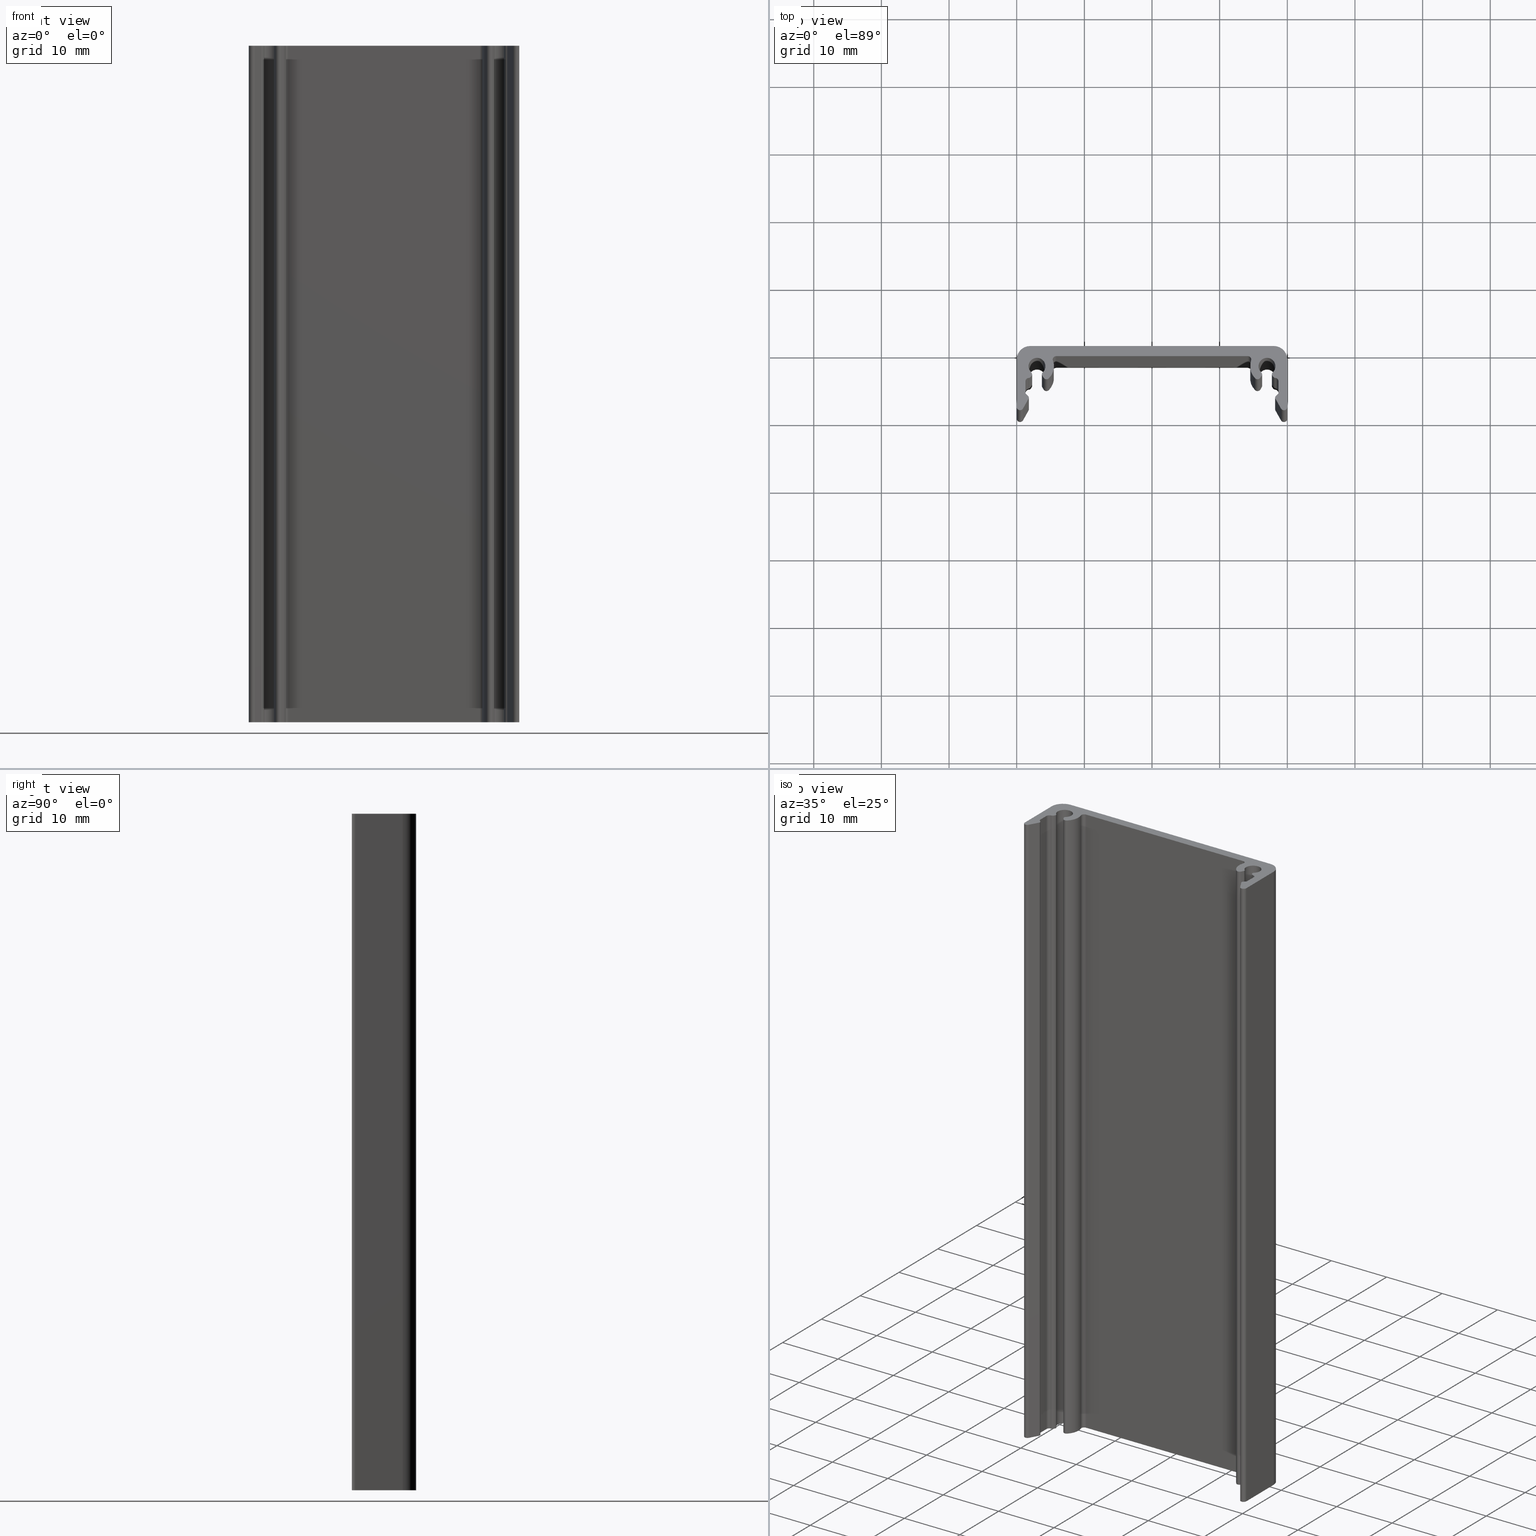
[diagram: canonical four-view strip — front | top / right | iso, engineering-drawing reading convention]
A machine part, canonical four-view strip (front | top / right | iso — engineering-drawing reading convention). The complete STEP part file that produces these views, byte-faithful:
ISO-10303-21;
HEADER;
/* Generated by software containing ST-Developer
 * from STEP Tools, Inc. (www.steptools.com) 
 */

FILE_DESCRIPTION(
/* description */ (''),
/* implementation_level */ '2;1');

FILE_NAME(
/* name */ 
'Q:\\Catalogo\\1_Profili Dierre\\Per Download Web\\Complementari\\BPRC
A0000006.stp',
/* time_stamp */ '2017-07-14T11:41:06+02:00',
/* author */ ('fzagni'),
/* organization */ (''),
/* preprocessor_version */ 'ST-DEVELOPER v16.1',
/* originating_system */ 'Autodesk Inventor 2016',
/* authorisation */ '');

FILE_SCHEMA (('AUTOMOTIVE_DESIGN { 1 0 10303 214 3 1 1 }'));
ENDSEC;

DATA;
#10=MECHANICAL_DESIGN_GEOMETRIC_PRESENTATION_REPRESENTATION('',(#13),#1271);
#11=SHAPE_REPRESENTATION_RELATIONSHIP('SRR','None',#1280,#12);
#12=ADVANCED_BREP_SHAPE_REPRESENTATION('',(#14),#1270);
#13=STYLED_ITEM('',(#1289),#14);
#14=MANIFOLD_SOLID_BREP('Solido1',#735);
#15=PLANE('',#746);
#16=PLANE('',#756);
#17=PLANE('',#766);
#18=PLANE('',#773);
#19=PLANE('',#774);
#20=PLANE('',#778);
#21=PLANE('',#782);
#22=PLANE('',#783);
#23=PLANE('',#793);
#24=PLANE('',#800);
#25=PLANE('',#801);
#26=PLANE('',#805);
#27=PLANE('',#809);
#28=PLANE('',#816);
#29=PLANE('',#817);
#30=PLANE('',#818);
#31=FACE_OUTER_BOUND('',#69,.T.);
#32=FACE_OUTER_BOUND('',#70,.T.);
#33=FACE_OUTER_BOUND('',#71,.T.);
#34=FACE_OUTER_BOUND('',#72,.T.);
#35=FACE_OUTER_BOUND('',#73,.T.);
#36=FACE_OUTER_BOUND('',#74,.T.);
#37=FACE_OUTER_BOUND('',#75,.T.);
#38=FACE_OUTER_BOUND('',#76,.T.);
#39=FACE_OUTER_BOUND('',#77,.T.);
#40=FACE_OUTER_BOUND('',#78,.T.);
#41=FACE_OUTER_BOUND('',#79,.T.);
#42=FACE_OUTER_BOUND('',#80,.T.);
#43=FACE_OUTER_BOUND('',#81,.T.);
#44=FACE_OUTER_BOUND('',#82,.T.);
#45=FACE_OUTER_BOUND('',#83,.T.);
#46=FACE_OUTER_BOUND('',#84,.T.);
#47=FACE_OUTER_BOUND('',#85,.T.);
#48=FACE_OUTER_BOUND('',#86,.T.);
#49=FACE_OUTER_BOUND('',#87,.T.);
#50=FACE_OUTER_BOUND('',#88,.T.);
#51=FACE_OUTER_BOUND('',#89,.T.);
#52=FACE_OUTER_BOUND('',#90,.T.);
#53=FACE_OUTER_BOUND('',#91,.T.);
#54=FACE_OUTER_BOUND('',#92,.T.);
#55=FACE_OUTER_BOUND('',#93,.T.);
#56=FACE_OUTER_BOUND('',#94,.T.);
#57=FACE_OUTER_BOUND('',#95,.T.);
#58=FACE_OUTER_BOUND('',#96,.T.);
#59=FACE_OUTER_BOUND('',#97,.T.);
#60=FACE_OUTER_BOUND('',#98,.T.);
#61=FACE_OUTER_BOUND('',#99,.T.);
#62=FACE_OUTER_BOUND('',#100,.T.);
#63=FACE_OUTER_BOUND('',#101,.T.);
#64=FACE_OUTER_BOUND('',#102,.T.);
#65=FACE_OUTER_BOUND('',#103,.T.);
#66=FACE_OUTER_BOUND('',#104,.T.);
#67=FACE_OUTER_BOUND('',#105,.T.);
#68=FACE_OUTER_BOUND('',#106,.T.);
#69=EDGE_LOOP('',(#459,#460,#461,#462));
#70=EDGE_LOOP('',(#463,#464,#465,#466));
#71=EDGE_LOOP('',(#467,#468,#469,#470));
#72=EDGE_LOOP('',(#471,#472,#473,#474));
#73=EDGE_LOOP('',(#475,#476,#477,#478));
#74=EDGE_LOOP('',(#479,#480,#481,#482));
#75=EDGE_LOOP('',(#483,#484,#485,#486));
#76=EDGE_LOOP('',(#487,#488,#489,#490));
#77=EDGE_LOOP('',(#491,#492,#493,#494));
#78=EDGE_LOOP('',(#495,#496,#497,#498));
#79=EDGE_LOOP('',(#499,#500,#501,#502));
#80=EDGE_LOOP('',(#503,#504,#505,#506));
#81=EDGE_LOOP('',(#507,#508,#509,#510));
#82=EDGE_LOOP('',(#511,#512,#513,#514));
#83=EDGE_LOOP('',(#515,#516,#517,#518));
#84=EDGE_LOOP('',(#519,#520,#521,#522));
#85=EDGE_LOOP('',(#523,#524,#525,#526));
#86=EDGE_LOOP('',(#527,#528,#529,#530));
#87=EDGE_LOOP('',(#531,#532,#533,#534));
#88=EDGE_LOOP('',(#535,#536,#537,#538));
#89=EDGE_LOOP('',(#539,#540,#541,#542));
#90=EDGE_LOOP('',(#543,#544,#545,#546));
#91=EDGE_LOOP('',(#547,#548,#549,#550));
#92=EDGE_LOOP('',(#551,#552,#553,#554));
#93=EDGE_LOOP('',(#555,#556,#557,#558));
#94=EDGE_LOOP('',(#559,#560,#561,#562));
#95=EDGE_LOOP('',(#563,#564,#565,#566));
#96=EDGE_LOOP('',(#567,#568,#569,#570));
#97=EDGE_LOOP('',(#571,#572,#573,#574));
#98=EDGE_LOOP('',(#575,#576,#577,#578));
#99=EDGE_LOOP('',(#579,#580,#581,#582));
#100=EDGE_LOOP('',(#583,#584,#585,#586));
#101=EDGE_LOOP('',(#587,#588,#589,#590));
#102=EDGE_LOOP('',(#591,#592,#593,#594));
#103=EDGE_LOOP('',(#595,#596,#597,#598));
#104=EDGE_LOOP('',(#599,#600,#601,#602,#603,#604,#605,#606,#607,#608,#609,
#610,#611,#612,#613,#614,#615,#616,#617,#618,#619,#620,#621,#622,#623,#624,
#625,#626,#627,#628,#629,#630,#631,#632,#633,#634));
#105=EDGE_LOOP('',(#635,#636,#637,#638));
#106=EDGE_LOOP('',(#639,#640,#641,#642,#643,#644,#645,#646,#647,#648,#649,
#650,#651,#652,#653,#654,#655,#656,#657,#658,#659,#660,#661,#662,#663,#664,
#665,#666,#667,#668,#669,#670,#671,#672,#673,#674));
#107=LINE('',#1055,#171);
#108=LINE('',#1058,#172);
#109=LINE('',#1064,#173);
#110=LINE('',#1070,#174);
#111=LINE('',#1073,#175);
#112=LINE('',#1075,#176);
#113=LINE('',#1076,#177);
#114=LINE('',#1082,#178);
#115=LINE('',#1088,#179);
#116=LINE('',#1094,#180);
#117=LINE('',#1097,#181);
#118=LINE('',#1099,#182);
#119=LINE('',#1100,#183);
#120=LINE('',#1106,#184);
#121=LINE('',#1112,#185);
#122=LINE('',#1118,#186);
#123=LINE('',#1121,#187);
#124=LINE('',#1123,#188);
#125=LINE('',#1124,#189);
#126=LINE('',#1130,#190);
#127=LINE('',#1136,#191);
#128=LINE('',#1139,#192);
#129=LINE('',#1141,#193);
#130=LINE('',#1142,#194);
#131=LINE('',#1145,#195);
#132=LINE('',#1147,#196);
#133=LINE('',#1148,#197);
#134=LINE('',#1154,#198);
#135=LINE('',#1157,#199);
#136=LINE('',#1159,#200);
#137=LINE('',#1160,#201);
#138=LINE('',#1166,#202);
#139=LINE('',#1169,#203);
#140=LINE('',#1171,#204);
#141=LINE('',#1172,#205);
#142=LINE('',#1175,#206);
#143=LINE('',#1177,#207);
#144=LINE('',#1178,#208);
#145=LINE('',#1183,#209);
#146=LINE('',#1189,#210);
#147=LINE('',#1195,#211);
#148=LINE('',#1199,#212);
#149=LINE('',#1201,#213);
#150=LINE('',#1202,#214);
#151=LINE('',#1207,#215);
#152=LINE('',#1213,#216);
#153=LINE('',#1217,#217);
#154=LINE('',#1219,#218);
#155=LINE('',#1220,#219);
#156=LINE('',#1223,#220);
#157=LINE('',#1225,#221);
#158=LINE('',#1226,#222);
#159=LINE('',#1231,#223);
#160=LINE('',#1235,#224);
#161=LINE('',#1237,#225);
#162=LINE('',#1238,#226);
#163=LINE('',#1243,#227);
#164=LINE('',#1247,#228);
#165=LINE('',#1249,#229);
#166=LINE('',#1250,#230);
#167=LINE('',#1255,#231);
#168=LINE('',#1262,#232);
#169=LINE('',#1264,#233);
#170=LINE('',#1266,#234);
#171=VECTOR('',#825,100.);
#172=VECTOR('',#828,100.);
#173=VECTOR('',#835,100.);
#174=VECTOR('',#842,100.);
#175=VECTOR('',#845,28.3431457504998);
#176=VECTOR('',#846,28.3431457504998);
#177=VECTOR('',#847,100.);
#178=VECTOR('',#854,100.);
#179=VECTOR('',#861,100.);
#180=VECTOR('',#868,100.);
#181=VECTOR('',#871,0.415801040542399);
#182=VECTOR('',#872,0.415801040542399);
#183=VECTOR('',#873,100.);
#184=VECTOR('',#880,100.);
#185=VECTOR('',#887,100.);
#186=VECTOR('',#894,100.);
#187=VECTOR('',#897,0.19038011818812);
#188=VECTOR('',#898,0.19038011818812);
#189=VECTOR('',#899,100.);
#190=VECTOR('',#906,100.);
#191=VECTOR('',#913,100.);
#192=VECTOR('',#916,1.77783328947104);
#193=VECTOR('',#917,1.77783328947104);
#194=VECTOR('',#918,100.);
#195=VECTOR('',#921,0.582842712490683);
#196=VECTOR('',#922,0.582842712490683);
#197=VECTOR('',#923,100.);
#198=VECTOR('',#930,100.);
#199=VECTOR('',#933,1.68430994774901);
#200=VECTOR('',#934,1.68430994774901);
#201=VECTOR('',#935,100.);
#202=VECTOR('',#942,100.);
#203=VECTOR('',#945,6.99999999999857);
#204=VECTOR('',#946,6.99999999999857);
#205=VECTOR('',#947,100.);
#206=VECTOR('',#950,0.415801040537529);
#207=VECTOR('',#951,100.);
#208=VECTOR('',#952,0.415801040537529);
#209=VECTOR('',#957,100.);
#210=VECTOR('',#964,100.);
#211=VECTOR('',#971,100.);
#212=VECTOR('',#976,0.190380118148697);
#213=VECTOR('',#977,100.);
#214=VECTOR('',#978,0.190380118148697);
#215=VECTOR('',#983,100.);
#216=VECTOR('',#990,100.);
#217=VECTOR('',#995,1.77783328945031);
#218=VECTOR('',#996,100.);
#219=VECTOR('',#997,1.77783328945031);
#220=VECTOR('',#1000,0.582842712467854);
#221=VECTOR('',#1001,100.);
#222=VECTOR('',#1002,0.582842712467854);
#223=VECTOR('',#1007,100.);
#224=VECTOR('',#1012,1.68430994772338);
#225=VECTOR('',#1013,100.);
#226=VECTOR('',#1014,1.68430994772338);
#227=VECTOR('',#1019,100.);
#228=VECTOR('',#1024,6.99999999998679);
#229=VECTOR('',#1025,100.);
#230=VECTOR('',#1026,6.99999999998679);
#231=VECTOR('',#1031,100.);
#232=VECTOR('',#1040,100.);
#233=VECTOR('',#1043,36.);
#234=VECTOR('',#1046,36.);
#235=CIRCLE('',#738,0.5);
#236=CIRCLE('',#739,0.5);
#237=CIRCLE('',#741,2.50000000000608);
#238=CIRCLE('',#742,2.50000000000608);
#239=CIRCLE('',#744,0.5);
#240=CIRCLE('',#745,0.5);
#241=CIRCLE('',#748,0.5);
#242=CIRCLE('',#749,0.5);
#243=CIRCLE('',#751,2.50000000000608);
#244=CIRCLE('',#752,2.50000000000608);
#245=CIRCLE('',#754,0.5);
#246=CIRCLE('',#755,0.5);
#247=CIRCLE('',#758,0.299999999999853);
#248=CIRCLE('',#759,0.299999999999853);
#249=CIRCLE('',#761,1.24999999999524);
#250=CIRCLE('',#762,1.24999999999524);
#251=CIRCLE('',#764,0.299999999999853);
#252=CIRCLE('',#765,0.299999999999853);
#253=CIRCLE('',#768,0.499999999999971);
#254=CIRCLE('',#769,0.499999999999971);
#255=CIRCLE('',#771,0.5);
#256=CIRCLE('',#772,0.5);
#257=CIRCLE('',#776,0.299999999999853);
#258=CIRCLE('',#777,0.299999999999853);
#259=CIRCLE('',#780,0.5);
#260=CIRCLE('',#781,0.5);
#261=CIRCLE('',#785,0.299999999999853);
#262=CIRCLE('',#786,0.299999999999853);
#263=CIRCLE('',#788,1.24999999999524);
#264=CIRCLE('',#789,1.24999999999524);
#265=CIRCLE('',#791,0.299999999999853);
#266=CIRCLE('',#792,0.299999999999853);
#267=CIRCLE('',#795,0.5);
#268=CIRCLE('',#796,0.5);
#269=CIRCLE('',#798,0.5);
#270=CIRCLE('',#799,0.5);
#271=CIRCLE('',#803,0.299999999999853);
#272=CIRCLE('',#804,0.299999999999853);
#273=CIRCLE('',#807,0.5);
#274=CIRCLE('',#808,0.5);
#275=CIRCLE('',#811,2.);
#276=CIRCLE('',#812,2.);
#277=CIRCLE('',#814,2.);
#278=CIRCLE('',#815,2.);
#279=VERTEX_POINT('',#1051);
#280=VERTEX_POINT('',#1052);
#281=VERTEX_POINT('',#1054);
#282=VERTEX_POINT('',#1056);
#283=VERTEX_POINT('',#1060);
#284=VERTEX_POINT('',#1062);
#285=VERTEX_POINT('',#1066);
#286=VERTEX_POINT('',#1068);
#287=VERTEX_POINT('',#1072);
#288=VERTEX_POINT('',#1074);
#289=VERTEX_POINT('',#1078);
#290=VERTEX_POINT('',#1080);
#291=VERTEX_POINT('',#1084);
#292=VERTEX_POINT('',#1086);
#293=VERTEX_POINT('',#1090);
#294=VERTEX_POINT('',#1092);
#295=VERTEX_POINT('',#1096);
#296=VERTEX_POINT('',#1098);
#297=VERTEX_POINT('',#1102);
#298=VERTEX_POINT('',#1104);
#299=VERTEX_POINT('',#1108);
#300=VERTEX_POINT('',#1110);
#301=VERTEX_POINT('',#1114);
#302=VERTEX_POINT('',#1116);
#303=VERTEX_POINT('',#1120);
#304=VERTEX_POINT('',#1122);
#305=VERTEX_POINT('',#1126);
#306=VERTEX_POINT('',#1128);
#307=VERTEX_POINT('',#1132);
#308=VERTEX_POINT('',#1134);
#309=VERTEX_POINT('',#1138);
#310=VERTEX_POINT('',#1140);
#311=VERTEX_POINT('',#1144);
#312=VERTEX_POINT('',#1146);
#313=VERTEX_POINT('',#1150);
#314=VERTEX_POINT('',#1152);
#315=VERTEX_POINT('',#1156);
#316=VERTEX_POINT('',#1158);
#317=VERTEX_POINT('',#1162);
#318=VERTEX_POINT('',#1164);
#319=VERTEX_POINT('',#1168);
#320=VERTEX_POINT('',#1170);
#321=VERTEX_POINT('',#1174);
#322=VERTEX_POINT('',#1176);
#323=VERTEX_POINT('',#1180);
#324=VERTEX_POINT('',#1182);
#325=VERTEX_POINT('',#1186);
#326=VERTEX_POINT('',#1188);
#327=VERTEX_POINT('',#1192);
#328=VERTEX_POINT('',#1194);
#329=VERTEX_POINT('',#1198);
#330=VERTEX_POINT('',#1200);
#331=VERTEX_POINT('',#1204);
#332=VERTEX_POINT('',#1206);
#333=VERTEX_POINT('',#1210);
#334=VERTEX_POINT('',#1212);
#335=VERTEX_POINT('',#1216);
#336=VERTEX_POINT('',#1218);
#337=VERTEX_POINT('',#1222);
#338=VERTEX_POINT('',#1224);
#339=VERTEX_POINT('',#1228);
#340=VERTEX_POINT('',#1230);
#341=VERTEX_POINT('',#1234);
#342=VERTEX_POINT('',#1236);
#343=VERTEX_POINT('',#1240);
#344=VERTEX_POINT('',#1242);
#345=VERTEX_POINT('',#1246);
#346=VERTEX_POINT('',#1248);
#347=VERTEX_POINT('',#1252);
#348=VERTEX_POINT('',#1254);
#349=VERTEX_POINT('',#1258);
#350=VERTEX_POINT('',#1260);
#351=EDGE_CURVE('',#279,#280,#235,.T.);
#352=EDGE_CURVE('',#279,#281,#107,.T.);
#353=EDGE_CURVE('',#282,#281,#236,.T.);
#354=EDGE_CURVE('',#280,#282,#108,.T.);
#355=EDGE_CURVE('',#280,#283,#237,.T.);
#356=EDGE_CURVE('',#284,#282,#238,.T.);
#357=EDGE_CURVE('',#283,#284,#109,.T.);
#358=EDGE_CURVE('',#283,#285,#239,.T.);
#359=EDGE_CURVE('',#286,#284,#240,.T.);
#360=EDGE_CURVE('',#285,#286,#110,.T.);
#361=EDGE_CURVE('',#285,#287,#111,.T.);
#362=EDGE_CURVE('',#288,#286,#112,.T.);
#363=EDGE_CURVE('',#287,#288,#113,.T.);
#364=EDGE_CURVE('',#287,#289,#241,.T.);
#365=EDGE_CURVE('',#290,#288,#242,.T.);
#366=EDGE_CURVE('',#289,#290,#114,.T.);
#367=EDGE_CURVE('',#289,#291,#243,.T.);
#368=EDGE_CURVE('',#292,#290,#244,.T.);
#369=EDGE_CURVE('',#291,#292,#115,.T.);
#370=EDGE_CURVE('',#291,#293,#245,.T.);
#371=EDGE_CURVE('',#294,#292,#246,.T.);
#372=EDGE_CURVE('',#293,#294,#116,.T.);
#373=EDGE_CURVE('',#293,#295,#117,.T.);
#374=EDGE_CURVE('',#296,#294,#118,.T.);
#375=EDGE_CURVE('',#295,#296,#119,.T.);
#376=EDGE_CURVE('',#295,#297,#247,.T.);
#377=EDGE_CURVE('',#298,#296,#248,.T.);
#378=EDGE_CURVE('',#297,#298,#120,.T.);
#379=EDGE_CURVE('',#297,#299,#249,.T.);
#380=EDGE_CURVE('',#300,#298,#250,.T.);
#381=EDGE_CURVE('',#299,#300,#121,.T.);
#382=EDGE_CURVE('',#299,#301,#251,.T.);
#383=EDGE_CURVE('',#302,#300,#252,.T.);
#384=EDGE_CURVE('',#301,#302,#122,.T.);
#385=EDGE_CURVE('',#301,#303,#123,.T.);
#386=EDGE_CURVE('',#304,#302,#124,.T.);
#387=EDGE_CURVE('',#303,#304,#125,.T.);
#388=EDGE_CURVE('',#303,#305,#253,.T.);
#389=EDGE_CURVE('',#306,#304,#254,.T.);
#390=EDGE_CURVE('',#305,#306,#126,.T.);
#391=EDGE_CURVE('',#305,#307,#255,.T.);
#392=EDGE_CURVE('',#308,#306,#256,.T.);
#393=EDGE_CURVE('',#308,#307,#127,.T.);
#394=EDGE_CURVE('',#307,#309,#128,.T.);
#395=EDGE_CURVE('',#310,#308,#129,.T.);
#396=EDGE_CURVE('',#309,#310,#130,.T.);
#397=EDGE_CURVE('',#309,#311,#131,.T.);
#398=EDGE_CURVE('',#312,#310,#132,.T.);
#399=EDGE_CURVE('',#311,#312,#133,.T.);
#400=EDGE_CURVE('',#311,#313,#257,.T.);
#401=EDGE_CURVE('',#314,#312,#258,.T.);
#402=EDGE_CURVE('',#313,#314,#134,.T.);
#403=EDGE_CURVE('',#313,#315,#135,.T.);
#404=EDGE_CURVE('',#316,#314,#136,.T.);
#405=EDGE_CURVE('',#315,#316,#137,.T.);
#406=EDGE_CURVE('',#315,#317,#259,.T.);
#407=EDGE_CURVE('',#318,#316,#260,.T.);
#408=EDGE_CURVE('',#317,#318,#138,.T.);
#409=EDGE_CURVE('',#317,#319,#139,.T.);
#410=EDGE_CURVE('',#320,#318,#140,.T.);
#411=EDGE_CURVE('',#319,#320,#141,.T.);
#412=EDGE_CURVE('',#321,#279,#142,.T.);
#413=EDGE_CURVE('',#321,#322,#143,.T.);
#414=EDGE_CURVE('',#281,#322,#144,.T.);
#415=EDGE_CURVE('',#323,#321,#261,.T.);
#416=EDGE_CURVE('',#323,#324,#145,.T.);
#417=EDGE_CURVE('',#322,#324,#262,.T.);
#418=EDGE_CURVE('',#325,#323,#263,.T.);
#419=EDGE_CURVE('',#325,#326,#146,.T.);
#420=EDGE_CURVE('',#324,#326,#264,.T.);
#421=EDGE_CURVE('',#327,#325,#265,.T.);
#422=EDGE_CURVE('',#327,#328,#147,.T.);
#423=EDGE_CURVE('',#326,#328,#266,.T.);
#424=EDGE_CURVE('',#329,#327,#148,.T.);
#425=EDGE_CURVE('',#329,#330,#149,.T.);
#426=EDGE_CURVE('',#328,#330,#150,.T.);
#427=EDGE_CURVE('',#331,#329,#267,.T.);
#428=EDGE_CURVE('',#331,#332,#151,.T.);
#429=EDGE_CURVE('',#330,#332,#268,.T.);
#430=EDGE_CURVE('',#333,#331,#269,.T.);
#431=EDGE_CURVE('',#333,#334,#152,.T.);
#432=EDGE_CURVE('',#332,#334,#270,.T.);
#433=EDGE_CURVE('',#335,#333,#153,.T.);
#434=EDGE_CURVE('',#335,#336,#154,.T.);
#435=EDGE_CURVE('',#334,#336,#155,.T.);
#436=EDGE_CURVE('',#337,#335,#156,.T.);
#437=EDGE_CURVE('',#337,#338,#157,.T.);
#438=EDGE_CURVE('',#336,#338,#158,.T.);
#439=EDGE_CURVE('',#339,#337,#271,.T.);
#440=EDGE_CURVE('',#339,#340,#159,.T.);
#441=EDGE_CURVE('',#338,#340,#272,.T.);
#442=EDGE_CURVE('',#341,#339,#160,.T.);
#443=EDGE_CURVE('',#341,#342,#161,.T.);
#444=EDGE_CURVE('',#340,#342,#162,.T.);
#445=EDGE_CURVE('',#343,#341,#273,.T.);
#446=EDGE_CURVE('',#343,#344,#163,.T.);
#447=EDGE_CURVE('',#342,#344,#274,.T.);
#448=EDGE_CURVE('',#345,#343,#164,.T.);
#449=EDGE_CURVE('',#345,#346,#165,.T.);
#450=EDGE_CURVE('',#344,#346,#166,.T.);
#451=EDGE_CURVE('',#347,#345,#275,.T.);
#452=EDGE_CURVE('',#347,#348,#167,.T.);
#453=EDGE_CURVE('',#346,#348,#276,.T.);
#454=EDGE_CURVE('',#319,#349,#277,.T.);
#455=EDGE_CURVE('',#350,#320,#278,.T.);
#456=EDGE_CURVE('',#349,#350,#168,.T.);
#457=EDGE_CURVE('',#348,#350,#169,.T.);
#458=EDGE_CURVE('',#347,#349,#170,.T.);
#459=ORIENTED_EDGE('',*,*,#351,.F.);
#460=ORIENTED_EDGE('',*,*,#352,.T.);
#461=ORIENTED_EDGE('',*,*,#353,.F.);
#462=ORIENTED_EDGE('',*,*,#354,.F.);
#463=ORIENTED_EDGE('',*,*,#355,.F.);
#464=ORIENTED_EDGE('',*,*,#354,.T.);
#465=ORIENTED_EDGE('',*,*,#356,.F.);
#466=ORIENTED_EDGE('',*,*,#357,.F.);
#467=ORIENTED_EDGE('',*,*,#358,.F.);
#468=ORIENTED_EDGE('',*,*,#357,.T.);
#469=ORIENTED_EDGE('',*,*,#359,.F.);
#470=ORIENTED_EDGE('',*,*,#360,.F.);
#471=ORIENTED_EDGE('',*,*,#361,.F.);
#472=ORIENTED_EDGE('',*,*,#360,.T.);
#473=ORIENTED_EDGE('',*,*,#362,.F.);
#474=ORIENTED_EDGE('',*,*,#363,.F.);
#475=ORIENTED_EDGE('',*,*,#364,.F.);
#476=ORIENTED_EDGE('',*,*,#363,.T.);
#477=ORIENTED_EDGE('',*,*,#365,.F.);
#478=ORIENTED_EDGE('',*,*,#366,.F.);
#479=ORIENTED_EDGE('',*,*,#367,.F.);
#480=ORIENTED_EDGE('',*,*,#366,.T.);
#481=ORIENTED_EDGE('',*,*,#368,.F.);
#482=ORIENTED_EDGE('',*,*,#369,.F.);
#483=ORIENTED_EDGE('',*,*,#370,.F.);
#484=ORIENTED_EDGE('',*,*,#369,.T.);
#485=ORIENTED_EDGE('',*,*,#371,.F.);
#486=ORIENTED_EDGE('',*,*,#372,.F.);
#487=ORIENTED_EDGE('',*,*,#373,.F.);
#488=ORIENTED_EDGE('',*,*,#372,.T.);
#489=ORIENTED_EDGE('',*,*,#374,.F.);
#490=ORIENTED_EDGE('',*,*,#375,.F.);
#491=ORIENTED_EDGE('',*,*,#376,.F.);
#492=ORIENTED_EDGE('',*,*,#375,.T.);
#493=ORIENTED_EDGE('',*,*,#377,.F.);
#494=ORIENTED_EDGE('',*,*,#378,.F.);
#495=ORIENTED_EDGE('',*,*,#379,.F.);
#496=ORIENTED_EDGE('',*,*,#378,.T.);
#497=ORIENTED_EDGE('',*,*,#380,.F.);
#498=ORIENTED_EDGE('',*,*,#381,.F.);
#499=ORIENTED_EDGE('',*,*,#382,.F.);
#500=ORIENTED_EDGE('',*,*,#381,.T.);
#501=ORIENTED_EDGE('',*,*,#383,.F.);
#502=ORIENTED_EDGE('',*,*,#384,.F.);
#503=ORIENTED_EDGE('',*,*,#385,.F.);
#504=ORIENTED_EDGE('',*,*,#384,.T.);
#505=ORIENTED_EDGE('',*,*,#386,.F.);
#506=ORIENTED_EDGE('',*,*,#387,.F.);
#507=ORIENTED_EDGE('',*,*,#388,.F.);
#508=ORIENTED_EDGE('',*,*,#387,.T.);
#509=ORIENTED_EDGE('',*,*,#389,.F.);
#510=ORIENTED_EDGE('',*,*,#390,.F.);
#511=ORIENTED_EDGE('',*,*,#391,.F.);
#512=ORIENTED_EDGE('',*,*,#390,.T.);
#513=ORIENTED_EDGE('',*,*,#392,.F.);
#514=ORIENTED_EDGE('',*,*,#393,.T.);
#515=ORIENTED_EDGE('',*,*,#394,.F.);
#516=ORIENTED_EDGE('',*,*,#393,.F.);
#517=ORIENTED_EDGE('',*,*,#395,.F.);
#518=ORIENTED_EDGE('',*,*,#396,.F.);
#519=ORIENTED_EDGE('',*,*,#397,.F.);
#520=ORIENTED_EDGE('',*,*,#396,.T.);
#521=ORIENTED_EDGE('',*,*,#398,.F.);
#522=ORIENTED_EDGE('',*,*,#399,.F.);
#523=ORIENTED_EDGE('',*,*,#400,.F.);
#524=ORIENTED_EDGE('',*,*,#399,.T.);
#525=ORIENTED_EDGE('',*,*,#401,.F.);
#526=ORIENTED_EDGE('',*,*,#402,.F.);
#527=ORIENTED_EDGE('',*,*,#403,.F.);
#528=ORIENTED_EDGE('',*,*,#402,.T.);
#529=ORIENTED_EDGE('',*,*,#404,.F.);
#530=ORIENTED_EDGE('',*,*,#405,.F.);
#531=ORIENTED_EDGE('',*,*,#406,.F.);
#532=ORIENTED_EDGE('',*,*,#405,.T.);
#533=ORIENTED_EDGE('',*,*,#407,.F.);
#534=ORIENTED_EDGE('',*,*,#408,.F.);
#535=ORIENTED_EDGE('',*,*,#409,.F.);
#536=ORIENTED_EDGE('',*,*,#408,.T.);
#537=ORIENTED_EDGE('',*,*,#410,.F.);
#538=ORIENTED_EDGE('',*,*,#411,.F.);
#539=ORIENTED_EDGE('',*,*,#412,.F.);
#540=ORIENTED_EDGE('',*,*,#413,.T.);
#541=ORIENTED_EDGE('',*,*,#414,.F.);
#542=ORIENTED_EDGE('',*,*,#352,.F.);
#543=ORIENTED_EDGE('',*,*,#415,.F.);
#544=ORIENTED_EDGE('',*,*,#416,.T.);
#545=ORIENTED_EDGE('',*,*,#417,.F.);
#546=ORIENTED_EDGE('',*,*,#413,.F.);
#547=ORIENTED_EDGE('',*,*,#418,.F.);
#548=ORIENTED_EDGE('',*,*,#419,.T.);
#549=ORIENTED_EDGE('',*,*,#420,.F.);
#550=ORIENTED_EDGE('',*,*,#416,.F.);
#551=ORIENTED_EDGE('',*,*,#421,.F.);
#552=ORIENTED_EDGE('',*,*,#422,.T.);
#553=ORIENTED_EDGE('',*,*,#423,.F.);
#554=ORIENTED_EDGE('',*,*,#419,.F.);
#555=ORIENTED_EDGE('',*,*,#424,.F.);
#556=ORIENTED_EDGE('',*,*,#425,.T.);
#557=ORIENTED_EDGE('',*,*,#426,.F.);
#558=ORIENTED_EDGE('',*,*,#422,.F.);
#559=ORIENTED_EDGE('',*,*,#427,.F.);
#560=ORIENTED_EDGE('',*,*,#428,.T.);
#561=ORIENTED_EDGE('',*,*,#429,.F.);
#562=ORIENTED_EDGE('',*,*,#425,.F.);
#563=ORIENTED_EDGE('',*,*,#430,.F.);
#564=ORIENTED_EDGE('',*,*,#431,.T.);
#565=ORIENTED_EDGE('',*,*,#432,.F.);
#566=ORIENTED_EDGE('',*,*,#428,.F.);
#567=ORIENTED_EDGE('',*,*,#433,.F.);
#568=ORIENTED_EDGE('',*,*,#434,.T.);
#569=ORIENTED_EDGE('',*,*,#435,.F.);
#570=ORIENTED_EDGE('',*,*,#431,.F.);
#571=ORIENTED_EDGE('',*,*,#436,.F.);
#572=ORIENTED_EDGE('',*,*,#437,.T.);
#573=ORIENTED_EDGE('',*,*,#438,.F.);
#574=ORIENTED_EDGE('',*,*,#434,.F.);
#575=ORIENTED_EDGE('',*,*,#439,.F.);
#576=ORIENTED_EDGE('',*,*,#440,.T.);
#577=ORIENTED_EDGE('',*,*,#441,.F.);
#578=ORIENTED_EDGE('',*,*,#437,.F.);
#579=ORIENTED_EDGE('',*,*,#442,.F.);
#580=ORIENTED_EDGE('',*,*,#443,.T.);
#581=ORIENTED_EDGE('',*,*,#444,.F.);
#582=ORIENTED_EDGE('',*,*,#440,.F.);
#583=ORIENTED_EDGE('',*,*,#445,.F.);
#584=ORIENTED_EDGE('',*,*,#446,.T.);
#585=ORIENTED_EDGE('',*,*,#447,.F.);
#586=ORIENTED_EDGE('',*,*,#443,.F.);
#587=ORIENTED_EDGE('',*,*,#448,.F.);
#588=ORIENTED_EDGE('',*,*,#449,.T.);
#589=ORIENTED_EDGE('',*,*,#450,.F.);
#590=ORIENTED_EDGE('',*,*,#446,.F.);
#591=ORIENTED_EDGE('',*,*,#451,.F.);
#592=ORIENTED_EDGE('',*,*,#452,.T.);
#593=ORIENTED_EDGE('',*,*,#453,.F.);
#594=ORIENTED_EDGE('',*,*,#449,.F.);
#595=ORIENTED_EDGE('',*,*,#454,.F.);
#596=ORIENTED_EDGE('',*,*,#411,.T.);
#597=ORIENTED_EDGE('',*,*,#455,.F.);
#598=ORIENTED_EDGE('',*,*,#456,.F.);
#599=ORIENTED_EDGE('',*,*,#455,.T.);
#600=ORIENTED_EDGE('',*,*,#410,.T.);
#601=ORIENTED_EDGE('',*,*,#407,.T.);
#602=ORIENTED_EDGE('',*,*,#404,.T.);
#603=ORIENTED_EDGE('',*,*,#401,.T.);
#604=ORIENTED_EDGE('',*,*,#398,.T.);
#605=ORIENTED_EDGE('',*,*,#395,.T.);
#606=ORIENTED_EDGE('',*,*,#392,.T.);
#607=ORIENTED_EDGE('',*,*,#389,.T.);
#608=ORIENTED_EDGE('',*,*,#386,.T.);
#609=ORIENTED_EDGE('',*,*,#383,.T.);
#610=ORIENTED_EDGE('',*,*,#380,.T.);
#611=ORIENTED_EDGE('',*,*,#377,.T.);
#612=ORIENTED_EDGE('',*,*,#374,.T.);
#613=ORIENTED_EDGE('',*,*,#371,.T.);
#614=ORIENTED_EDGE('',*,*,#368,.T.);
#615=ORIENTED_EDGE('',*,*,#365,.T.);
#616=ORIENTED_EDGE('',*,*,#362,.T.);
#617=ORIENTED_EDGE('',*,*,#359,.T.);
#618=ORIENTED_EDGE('',*,*,#356,.T.);
#619=ORIENTED_EDGE('',*,*,#353,.T.);
#620=ORIENTED_EDGE('',*,*,#414,.T.);
#621=ORIENTED_EDGE('',*,*,#417,.T.);
#622=ORIENTED_EDGE('',*,*,#420,.T.);
#623=ORIENTED_EDGE('',*,*,#423,.T.);
#624=ORIENTED_EDGE('',*,*,#426,.T.);
#625=ORIENTED_EDGE('',*,*,#429,.T.);
#626=ORIENTED_EDGE('',*,*,#432,.T.);
#627=ORIENTED_EDGE('',*,*,#435,.T.);
#628=ORIENTED_EDGE('',*,*,#438,.T.);
#629=ORIENTED_EDGE('',*,*,#441,.T.);
#630=ORIENTED_EDGE('',*,*,#444,.T.);
#631=ORIENTED_EDGE('',*,*,#447,.T.);
#632=ORIENTED_EDGE('',*,*,#450,.T.);
#633=ORIENTED_EDGE('',*,*,#453,.T.);
#634=ORIENTED_EDGE('',*,*,#457,.T.);
#635=ORIENTED_EDGE('',*,*,#456,.T.);
#636=ORIENTED_EDGE('',*,*,#457,.F.);
#637=ORIENTED_EDGE('',*,*,#452,.F.);
#638=ORIENTED_EDGE('',*,*,#458,.T.);
#639=ORIENTED_EDGE('',*,*,#454,.T.);
#640=ORIENTED_EDGE('',*,*,#458,.F.);
#641=ORIENTED_EDGE('',*,*,#451,.T.);
#642=ORIENTED_EDGE('',*,*,#448,.T.);
#643=ORIENTED_EDGE('',*,*,#445,.T.);
#644=ORIENTED_EDGE('',*,*,#442,.T.);
#645=ORIENTED_EDGE('',*,*,#439,.T.);
#646=ORIENTED_EDGE('',*,*,#436,.T.);
#647=ORIENTED_EDGE('',*,*,#433,.T.);
#648=ORIENTED_EDGE('',*,*,#430,.T.);
#649=ORIENTED_EDGE('',*,*,#427,.T.);
#650=ORIENTED_EDGE('',*,*,#424,.T.);
#651=ORIENTED_EDGE('',*,*,#421,.T.);
#652=ORIENTED_EDGE('',*,*,#418,.T.);
#653=ORIENTED_EDGE('',*,*,#415,.T.);
#654=ORIENTED_EDGE('',*,*,#412,.T.);
#655=ORIENTED_EDGE('',*,*,#351,.T.);
#656=ORIENTED_EDGE('',*,*,#355,.T.);
#657=ORIENTED_EDGE('',*,*,#358,.T.);
#658=ORIENTED_EDGE('',*,*,#361,.T.);
#659=ORIENTED_EDGE('',*,*,#364,.T.);
#660=ORIENTED_EDGE('',*,*,#367,.T.);
#661=ORIENTED_EDGE('',*,*,#370,.T.);
#662=ORIENTED_EDGE('',*,*,#373,.T.);
#663=ORIENTED_EDGE('',*,*,#376,.T.);
#664=ORIENTED_EDGE('',*,*,#379,.T.);
#665=ORIENTED_EDGE('',*,*,#382,.T.);
#666=ORIENTED_EDGE('',*,*,#385,.T.);
#667=ORIENTED_EDGE('',*,*,#388,.T.);
#668=ORIENTED_EDGE('',*,*,#391,.T.);
#669=ORIENTED_EDGE('',*,*,#394,.T.);
#670=ORIENTED_EDGE('',*,*,#397,.T.);
#671=ORIENTED_EDGE('',*,*,#400,.T.);
#672=ORIENTED_EDGE('',*,*,#403,.T.);
#673=ORIENTED_EDGE('',*,*,#406,.T.);
#674=ORIENTED_EDGE('',*,*,#409,.T.);
#675=CYLINDRICAL_SURFACE('',#737,0.5);
#676=CYLINDRICAL_SURFACE('',#740,2.50000000000608);
#677=CYLINDRICAL_SURFACE('',#743,0.5);
#678=CYLINDRICAL_SURFACE('',#747,0.5);
#679=CYLINDRICAL_SURFACE('',#750,2.50000000000608);
#680=CYLINDRICAL_SURFACE('',#753,0.5);
#681=CYLINDRICAL_SURFACE('',#757,0.299999999999853);
#682=CYLINDRICAL_SURFACE('',#760,1.24999999999524);
#683=CYLINDRICAL_SURFACE('',#763,0.299999999999853);
#684=CYLINDRICAL_SURFACE('',#767,0.499999999999971);
#685=CYLINDRICAL_SURFACE('',#770,0.5);
#686=CYLINDRICAL_SURFACE('',#775,0.299999999999853);
#687=CYLINDRICAL_SURFACE('',#779,0.5);
#688=CYLINDRICAL_SURFACE('',#784,0.299999999999853);
#689=CYLINDRICAL_SURFACE('',#787,1.24999999999524);
#690=CYLINDRICAL_SURFACE('',#790,0.299999999999853);
#691=CYLINDRICAL_SURFACE('',#794,0.5);
#692=CYLINDRICAL_SURFACE('',#797,0.5);
#693=CYLINDRICAL_SURFACE('',#802,0.299999999999853);
#694=CYLINDRICAL_SURFACE('',#806,0.5);
#695=CYLINDRICAL_SURFACE('',#810,2.);
#696=CYLINDRICAL_SURFACE('',#813,2.);
#697=ADVANCED_FACE('',(#31),#675,.T.);
#698=ADVANCED_FACE('',(#32),#676,.T.);
#699=ADVANCED_FACE('',(#33),#677,.F.);
#700=ADVANCED_FACE('',(#34),#15,.T.);
#701=ADVANCED_FACE('',(#35),#678,.F.);
#702=ADVANCED_FACE('',(#36),#679,.T.);
#703=ADVANCED_FACE('',(#37),#680,.T.);
#704=ADVANCED_FACE('',(#38),#16,.T.);
#705=ADVANCED_FACE('',(#39),#681,.T.);
#706=ADVANCED_FACE('',(#40),#682,.F.);
#707=ADVANCED_FACE('',(#41),#683,.T.);
#708=ADVANCED_FACE('',(#42),#17,.T.);
#709=ADVANCED_FACE('',(#43),#684,.T.);
#710=ADVANCED_FACE('',(#44),#685,.F.);
#711=ADVANCED_FACE('',(#45),#18,.T.);
#712=ADVANCED_FACE('',(#46),#19,.T.);
#713=ADVANCED_FACE('',(#47),#686,.T.);
#714=ADVANCED_FACE('',(#48),#20,.T.);
#715=ADVANCED_FACE('',(#49),#687,.T.);
#716=ADVANCED_FACE('',(#50),#21,.T.);
#717=ADVANCED_FACE('',(#51),#22,.T.);
#718=ADVANCED_FACE('',(#52),#688,.T.);
#719=ADVANCED_FACE('',(#53),#689,.F.);
#720=ADVANCED_FACE('',(#54),#690,.T.);
#721=ADVANCED_FACE('',(#55),#23,.T.);
#722=ADVANCED_FACE('',(#56),#691,.T.);
#723=ADVANCED_FACE('',(#57),#692,.F.);
#724=ADVANCED_FACE('',(#58),#24,.T.);
#725=ADVANCED_FACE('',(#59),#25,.T.);
#726=ADVANCED_FACE('',(#60),#693,.T.);
#727=ADVANCED_FACE('',(#61),#26,.T.);
#728=ADVANCED_FACE('',(#62),#694,.T.);
#729=ADVANCED_FACE('',(#63),#27,.T.);
#730=ADVANCED_FACE('',(#64),#695,.T.);
#731=ADVANCED_FACE('',(#65),#696,.T.);
#732=ADVANCED_FACE('',(#66),#28,.F.);
#733=ADVANCED_FACE('',(#67),#29,.T.);
#734=ADVANCED_FACE('',(#68),#30,.T.);
#735=CLOSED_SHELL('',(#697,#698,#699,#700,#701,#702,#703,#704,#705,#706,
#707,#708,#709,#710,#711,#712,#713,#714,#715,#716,#717,#718,#719,#720,#721,
#722,#723,#724,#725,#726,#727,#728,#729,#730,#731,#732,#733,#734));
#736=AXIS2_PLACEMENT_3D('placement',#1049,#819,#820);
#737=AXIS2_PLACEMENT_3D('',#1050,#821,#822);
#738=AXIS2_PLACEMENT_3D('',#1053,#823,#824);
#739=AXIS2_PLACEMENT_3D('',#1057,#826,#827);
#740=AXIS2_PLACEMENT_3D('',#1059,#829,#830);
#741=AXIS2_PLACEMENT_3D('',#1061,#831,#832);
#742=AXIS2_PLACEMENT_3D('',#1063,#833,#834);
#743=AXIS2_PLACEMENT_3D('',#1065,#836,#837);
#744=AXIS2_PLACEMENT_3D('',#1067,#838,#839);
#745=AXIS2_PLACEMENT_3D('',#1069,#840,#841);
#746=AXIS2_PLACEMENT_3D('',#1071,#843,#844);
#747=AXIS2_PLACEMENT_3D('',#1077,#848,#849);
#748=AXIS2_PLACEMENT_3D('',#1079,#850,#851);
#749=AXIS2_PLACEMENT_3D('',#1081,#852,#853);
#750=AXIS2_PLACEMENT_3D('',#1083,#855,#856);
#751=AXIS2_PLACEMENT_3D('',#1085,#857,#858);
#752=AXIS2_PLACEMENT_3D('',#1087,#859,#860);
#753=AXIS2_PLACEMENT_3D('',#1089,#862,#863);
#754=AXIS2_PLACEMENT_3D('',#1091,#864,#865);
#755=AXIS2_PLACEMENT_3D('',#1093,#866,#867);
#756=AXIS2_PLACEMENT_3D('',#1095,#869,#870);
#757=AXIS2_PLACEMENT_3D('',#1101,#874,#875);
#758=AXIS2_PLACEMENT_3D('',#1103,#876,#877);
#759=AXIS2_PLACEMENT_3D('',#1105,#878,#879);
#760=AXIS2_PLACEMENT_3D('',#1107,#881,#882);
#761=AXIS2_PLACEMENT_3D('',#1109,#883,#884);
#762=AXIS2_PLACEMENT_3D('',#1111,#885,#886);
#763=AXIS2_PLACEMENT_3D('',#1113,#888,#889);
#764=AXIS2_PLACEMENT_3D('',#1115,#890,#891);
#765=AXIS2_PLACEMENT_3D('',#1117,#892,#893);
#766=AXIS2_PLACEMENT_3D('',#1119,#895,#896);
#767=AXIS2_PLACEMENT_3D('',#1125,#900,#901);
#768=AXIS2_PLACEMENT_3D('',#1127,#902,#903);
#769=AXIS2_PLACEMENT_3D('',#1129,#904,#905);
#770=AXIS2_PLACEMENT_3D('',#1131,#907,#908);
#771=AXIS2_PLACEMENT_3D('',#1133,#909,#910);
#772=AXIS2_PLACEMENT_3D('',#1135,#911,#912);
#773=AXIS2_PLACEMENT_3D('',#1137,#914,#915);
#774=AXIS2_PLACEMENT_3D('',#1143,#919,#920);
#775=AXIS2_PLACEMENT_3D('',#1149,#924,#925);
#776=AXIS2_PLACEMENT_3D('',#1151,#926,#927);
#777=AXIS2_PLACEMENT_3D('',#1153,#928,#929);
#778=AXIS2_PLACEMENT_3D('',#1155,#931,#932);
#779=AXIS2_PLACEMENT_3D('',#1161,#936,#937);
#780=AXIS2_PLACEMENT_3D('',#1163,#938,#939);
#781=AXIS2_PLACEMENT_3D('',#1165,#940,#941);
#782=AXIS2_PLACEMENT_3D('',#1167,#943,#944);
#783=AXIS2_PLACEMENT_3D('',#1173,#948,#949);
#784=AXIS2_PLACEMENT_3D('',#1179,#953,#954);
#785=AXIS2_PLACEMENT_3D('',#1181,#955,#956);
#786=AXIS2_PLACEMENT_3D('',#1184,#958,#959);
#787=AXIS2_PLACEMENT_3D('',#1185,#960,#961);
#788=AXIS2_PLACEMENT_3D('',#1187,#962,#963);
#789=AXIS2_PLACEMENT_3D('',#1190,#965,#966);
#790=AXIS2_PLACEMENT_3D('',#1191,#967,#968);
#791=AXIS2_PLACEMENT_3D('',#1193,#969,#970);
#792=AXIS2_PLACEMENT_3D('',#1196,#972,#973);
#793=AXIS2_PLACEMENT_3D('',#1197,#974,#975);
#794=AXIS2_PLACEMENT_3D('',#1203,#979,#980);
#795=AXIS2_PLACEMENT_3D('',#1205,#981,#982);
#796=AXIS2_PLACEMENT_3D('',#1208,#984,#985);
#797=AXIS2_PLACEMENT_3D('',#1209,#986,#987);
#798=AXIS2_PLACEMENT_3D('',#1211,#988,#989);
#799=AXIS2_PLACEMENT_3D('',#1214,#991,#992);
#800=AXIS2_PLACEMENT_3D('',#1215,#993,#994);
#801=AXIS2_PLACEMENT_3D('',#1221,#998,#999);
#802=AXIS2_PLACEMENT_3D('',#1227,#1003,#1004);
#803=AXIS2_PLACEMENT_3D('',#1229,#1005,#1006);
#804=AXIS2_PLACEMENT_3D('',#1232,#1008,#1009);
#805=AXIS2_PLACEMENT_3D('',#1233,#1010,#1011);
#806=AXIS2_PLACEMENT_3D('',#1239,#1015,#1016);
#807=AXIS2_PLACEMENT_3D('',#1241,#1017,#1018);
#808=AXIS2_PLACEMENT_3D('',#1244,#1020,#1021);
#809=AXIS2_PLACEMENT_3D('',#1245,#1022,#1023);
#810=AXIS2_PLACEMENT_3D('',#1251,#1027,#1028);
#811=AXIS2_PLACEMENT_3D('',#1253,#1029,#1030);
#812=AXIS2_PLACEMENT_3D('',#1256,#1032,#1033);
#813=AXIS2_PLACEMENT_3D('',#1257,#1034,#1035);
#814=AXIS2_PLACEMENT_3D('',#1259,#1036,#1037);
#815=AXIS2_PLACEMENT_3D('',#1261,#1038,#1039);
#816=AXIS2_PLACEMENT_3D('',#1263,#1041,#1042);
#817=AXIS2_PLACEMENT_3D('',#1265,#1044,#1045);
#818=AXIS2_PLACEMENT_3D('',#1267,#1047,#1048);
#819=DIRECTION('axis',(0.,0.,1.));
#820=DIRECTION('refdir',(1.,0.,0.));
#821=DIRECTION('center_axis',(0.,0.,1.));
#822=DIRECTION('ref_axis',(0.86602540378473,0.499999999999496,0.));
#823=DIRECTION('center_axis',(0.,0.,1.));
#824=DIRECTION('ref_axis',(0.86602540378473,0.499999999999496,0.));
#825=DIRECTION('',(0.,0.,-1.));
#826=DIRECTION('center_axis',(0.,0.,-1.));
#827=DIRECTION('ref_axis',(0.86602540378473,0.499999999999496,0.));
#828=DIRECTION('',(0.,0.,-1.));
#829=DIRECTION('center_axis',(0.,0.,1.));
#830=DIRECTION('ref_axis',(-0.70062926923846,0.713525491546295,0.));
#831=DIRECTION('center_axis',(0.,0.,1.));
#832=DIRECTION('ref_axis',(-0.70062926923846,0.713525491546295,0.));
#833=DIRECTION('center_axis',(0.,0.,-1.));
#834=DIRECTION('ref_axis',(-0.70062926923846,0.713525491546295,0.));
#835=DIRECTION('',(0.,0.,-1.));
#836=DIRECTION('center_axis',(0.,0.,1.));
#837=DIRECTION('ref_axis',(4.44089209850064E-15,1.,0.));
#838=DIRECTION('center_axis',(0.,0.,-1.));
#839=DIRECTION('ref_axis',(4.44089209850064E-15,1.,0.));
#840=DIRECTION('center_axis',(0.,0.,1.));
#841=DIRECTION('ref_axis',(4.44089209850064E-15,1.,0.));
#842=DIRECTION('',(0.,0.,-1.));
#843=DIRECTION('center_axis',(-2.64794448454392E-14,-1.,0.));
#844=DIRECTION('ref_axis',(1.,-2.64899213675562E-14,0.));
#845=DIRECTION('',(1.,-2.64794448454392E-14,0.));
#846=DIRECTION('',(-1.,2.64794448454392E-14,0.));
#847=DIRECTION('',(0.,0.,-1.));
#848=DIRECTION('center_axis',(0.,0.,1.));
#849=DIRECTION('ref_axis',(0.942809041595373,-0.333333333295689,0.));
#850=DIRECTION('center_axis',(0.,0.,-1.));
#851=DIRECTION('ref_axis',(0.942809041595373,-0.333333333295689,0.));
#852=DIRECTION('center_axis',(0.,0.,1.));
#853=DIRECTION('ref_axis',(0.942809041595373,-0.333333333295689,0.));
#854=DIRECTION('',(0.,0.,-1.));
#855=DIRECTION('center_axis',(0.,0.,1.));
#856=DIRECTION('ref_axis',(0.942809041595373,-0.333333333295689,0.));
#857=DIRECTION('center_axis',(0.,0.,1.));
#858=DIRECTION('ref_axis',(0.942809041595373,-0.333333333295689,0.));
#859=DIRECTION('center_axis',(0.,0.,-1.));
#860=DIRECTION('ref_axis',(0.942809041595373,-0.333333333295689,0.));
#861=DIRECTION('',(0.,0.,-1.));
#862=DIRECTION('center_axis',(0.,0.,1.));
#863=DIRECTION('ref_axis',(0.700629269209054,0.713525491575169,0.));
#864=DIRECTION('center_axis',(0.,0.,1.));
#865=DIRECTION('ref_axis',(0.700629269209054,0.713525491575169,0.));
#866=DIRECTION('center_axis',(0.,0.,-1.));
#867=DIRECTION('ref_axis',(0.700629269209054,0.713525491575169,0.));
#868=DIRECTION('',(0.,0.,-1.));
#869=DIRECTION('center_axis',(0.866025403784681,-0.49999999999958,0.));
#870=DIRECTION('ref_axis',(0.49999999999958,0.866025403784681,0.));
#871=DIRECTION('',(0.49999999999958,0.866025403784681,0.));
#872=DIRECTION('',(-0.49999999999958,-0.866025403784681,0.));
#873=DIRECTION('',(0.,0.,-1.));
#874=DIRECTION('center_axis',(0.,0.,1.));
#875=DIRECTION('ref_axis',(-0.866025403784678,0.499999999999585,0.));
#876=DIRECTION('center_axis',(0.,0.,1.));
#877=DIRECTION('ref_axis',(-0.866025403784678,0.499999999999585,0.));
#878=DIRECTION('center_axis',(0.,0.,-1.));
#879=DIRECTION('ref_axis',(-0.866025403784678,0.499999999999585,0.));
#880=DIRECTION('',(0.,0.,-1.));
#881=DIRECTION('center_axis',(0.,0.,1.));
#882=DIRECTION('ref_axis',(0.658163185407506,-0.752875302672524,0.));
#883=DIRECTION('center_axis',(0.,0.,-1.));
#884=DIRECTION('ref_axis',(0.658163185407506,-0.752875302672524,0.));
#885=DIRECTION('center_axis',(0.,0.,1.));
#886=DIRECTION('ref_axis',(0.658163185407506,-0.752875302672524,0.));
#887=DIRECTION('',(0.,0.,-1.));
#888=DIRECTION('center_axis',(0.,0.,1.));
#889=DIRECTION('ref_axis',(0.658163185407506,-0.752875302672524,0.));
#890=DIRECTION('center_axis',(0.,0.,1.));
#891=DIRECTION('ref_axis',(0.658163185407506,-0.752875302672524,0.));
#892=DIRECTION('center_axis',(0.,0.,-1.));
#893=DIRECTION('ref_axis',(0.658163185407506,-0.752875302672524,0.));
#894=DIRECTION('',(0.,0.,-1.));
#895=DIRECTION('center_axis',(-0.866025403784725,-0.499999999999504,0.));
#896=DIRECTION('ref_axis',(0.499999999999504,-0.866025403784725,0.));
#897=DIRECTION('',(0.499999999999504,-0.866025403784725,0.));
#898=DIRECTION('',(-0.499999999999504,0.866025403784725,0.));
#899=DIRECTION('',(0.,0.,-1.));
#900=DIRECTION('center_axis',(0.,0.,1.));
#901=DIRECTION('ref_axis',(0.866025403784728,0.499999999999498,0.));
#902=DIRECTION('center_axis',(0.,0.,1.));
#903=DIRECTION('ref_axis',(0.866025403784728,0.499999999999498,0.));
#904=DIRECTION('center_axis',(0.,0.,-1.));
#905=DIRECTION('ref_axis',(0.866025403784728,0.499999999999498,0.));
#906=DIRECTION('',(0.,0.,-1.));
#907=DIRECTION('center_axis',(0.,0.,1.));
#908=DIRECTION('ref_axis',(1.,0.,0.));
#909=DIRECTION('center_axis',(0.,0.,-1.));
#910=DIRECTION('ref_axis',(1.,0.,0.));
#911=DIRECTION('center_axis',(0.,0.,1.));
#912=DIRECTION('ref_axis',(1.,0.,0.));
#913=DIRECTION('',(0.,0.,1.));
#914=DIRECTION('center_axis',(-1.,0.,0.));
#915=DIRECTION('ref_axis',(0.,-1.,0.));
#916=DIRECTION('',(0.,-1.,0.));
#917=DIRECTION('',(0.,1.,0.));
#918=DIRECTION('',(0.,0.,-1.));
#919=DIRECTION('center_axis',(-0.70710678118635,0.707106781186746,0.));
#920=DIRECTION('ref_axis',(-0.707106781186746,-0.707106781186349,0.));
#921=DIRECTION('',(-0.707106781186746,-0.707106781186349,0.));
#922=DIRECTION('',(0.707106781186746,0.707106781186349,0.));
#923=DIRECTION('',(0.,0.,-1.));
#924=DIRECTION('center_axis',(0.,0.,1.));
#925=DIRECTION('ref_axis',(0.707106781186355,-0.70710678118674,0.));
#926=DIRECTION('center_axis',(0.,0.,1.));
#927=DIRECTION('ref_axis',(0.707106781186355,-0.70710678118674,0.));
#928=DIRECTION('center_axis',(0.,0.,-1.));
#929=DIRECTION('ref_axis',(0.707106781186355,-0.70710678118674,0.));
#930=DIRECTION('',(0.,0.,-1.));
#931=DIRECTION('center_axis',(-0.871599509326425,-0.490218619946178,0.));
#932=DIRECTION('ref_axis',(0.490218619946178,-0.871599509326425,0.));
#933=DIRECTION('',(0.490218619946178,-0.871599509326425,0.));
#934=DIRECTION('',(-0.490218619946178,0.871599509326425,0.));
#935=DIRECTION('',(0.,0.,-1.));
#936=DIRECTION('center_axis',(0.,0.,1.));
#937=DIRECTION('ref_axis',(0.871599509326422,0.490218619946183,0.));
#938=DIRECTION('center_axis',(0.,0.,1.));
#939=DIRECTION('ref_axis',(0.871599509326422,0.490218619946183,0.));
#940=DIRECTION('center_axis',(0.,0.,-1.));
#941=DIRECTION('ref_axis',(0.871599509326422,0.490218619946183,0.));
#942=DIRECTION('',(0.,0.,-1.));
#943=DIRECTION('center_axis',(1.,0.,0.));
#944=DIRECTION('ref_axis',(0.,1.,0.));
#945=DIRECTION('',(0.,1.,0.));
#946=DIRECTION('',(0.,-1.,0.));
#947=DIRECTION('',(0.,0.,-1.));
#948=DIRECTION('center_axis',(-0.866025403784722,-0.499999999999509,0.));
#949=DIRECTION('ref_axis',(0.499999999999509,-0.866025403784722,0.));
#950=DIRECTION('',(0.499999999999509,-0.866025403784722,0.));
#951=DIRECTION('',(0.,0.,-1.));
#952=DIRECTION('',(-0.499999999999509,0.866025403784722,0.));
#953=DIRECTION('center_axis',(0.,0.,1.));
#954=DIRECTION('ref_axis',(0.658163185457281,-0.752875302629011,0.));
#955=DIRECTION('center_axis',(0.,0.,1.));
#956=DIRECTION('ref_axis',(0.658163185457281,-0.752875302629011,0.));
#957=DIRECTION('',(0.,0.,-1.));
#958=DIRECTION('center_axis',(0.,0.,-1.));
#959=DIRECTION('ref_axis',(0.658163185457281,-0.752875302629011,0.));
#960=DIRECTION('center_axis',(0.,0.,1.));
#961=DIRECTION('ref_axis',(0.658163185457277,-0.752875302629014,0.));
#962=DIRECTION('center_axis',(0.,0.,-1.));
#963=DIRECTION('ref_axis',(0.658163185457277,-0.752875302629014,0.));
#964=DIRECTION('',(0.,0.,-1.));
#965=DIRECTION('center_axis',(0.,0.,1.));
#966=DIRECTION('ref_axis',(0.658163185457277,-0.752875302629014,0.));
#967=DIRECTION('center_axis',(0.,0.,1.));
#968=DIRECTION('ref_axis',(-0.866025403784684,0.499999999999575,0.));
#969=DIRECTION('center_axis',(0.,0.,1.));
#970=DIRECTION('ref_axis',(-0.866025403784684,0.499999999999575,0.));
#971=DIRECTION('',(0.,0.,-1.));
#972=DIRECTION('center_axis',(0.,0.,-1.));
#973=DIRECTION('ref_axis',(-0.866025403784684,0.499999999999575,0.));
#974=DIRECTION('center_axis',(0.866025403784676,-0.499999999999588,0.));
#975=DIRECTION('ref_axis',(0.499999999999588,0.866025403784676,0.));
#976=DIRECTION('',(0.499999999999588,0.866025403784676,0.));
#977=DIRECTION('',(0.,0.,-1.));
#978=DIRECTION('',(-0.499999999999588,-0.866025403784676,0.));
#979=DIRECTION('center_axis',(0.,0.,1.));
#980=DIRECTION('ref_axis',(-0.0885480772385439,0.996071904039742,0.));
#981=DIRECTION('center_axis',(0.,0.,1.));
#982=DIRECTION('ref_axis',(-0.0885480772385439,0.996071904039742,0.));
#983=DIRECTION('',(0.,0.,-1.));
#984=DIRECTION('center_axis',(0.,0.,-1.));
#985=DIRECTION('ref_axis',(-0.0885480772385439,0.996071904039742,0.));
#986=DIRECTION('center_axis',(0.,0.,1.));
#987=DIRECTION('ref_axis',(-0.0885480772385483,0.996071904039742,0.));
#988=DIRECTION('center_axis',(0.,0.,-1.));
#989=DIRECTION('ref_axis',(-0.0885480772385483,0.996071904039742,0.));
#990=DIRECTION('',(0.,0.,-1.));
#991=DIRECTION('center_axis',(0.,0.,1.));
#992=DIRECTION('ref_axis',(-0.0885480772385483,0.996071904039742,0.));
#993=DIRECTION('center_axis',(1.,0.,0.));
#994=DIRECTION('ref_axis',(0.,1.,0.));
#995=DIRECTION('',(0.,1.,0.));
#996=DIRECTION('',(0.,0.,-1.));
#997=DIRECTION('',(0.,-1.,0.));
#998=DIRECTION('center_axis',(0.707106781186746,0.707106781186349,0.));
#999=DIRECTION('ref_axis',(-0.707106781186349,0.707106781186746,0.));
#1000=DIRECTION('',(-0.707106781186349,0.707106781186746,0.));
#1001=DIRECTION('',(0.,0.,-1.));
#1002=DIRECTION('',(0.707106781186349,-0.707106781186746,0.));
#1003=DIRECTION('center_axis',(0.,0.,1.));
#1004=DIRECTION('ref_axis',(-0.871599509326303,0.490218619946395,0.));
#1005=DIRECTION('center_axis',(0.,0.,1.));
#1006=DIRECTION('ref_axis',(-0.871599509326303,0.490218619946395,0.));
#1007=DIRECTION('',(0.,0.,-1.));
#1008=DIRECTION('center_axis',(0.,0.,-1.));
#1009=DIRECTION('ref_axis',(-0.871599509326303,0.490218619946395,0.));
#1010=DIRECTION('center_axis',(0.871599509326309,-0.490218619946385,0.));
#1011=DIRECTION('ref_axis',(0.490218619946385,0.871599509326309,0.));
#1012=DIRECTION('',(0.490218619946385,0.871599509326309,0.));
#1013=DIRECTION('',(0.,0.,-1.));
#1014=DIRECTION('',(-0.490218619946385,-0.871599509326309,0.));
#1015=DIRECTION('center_axis',(0.,0.,1.));
#1016=DIRECTION('ref_axis',(1.,0.,0.));
#1017=DIRECTION('center_axis',(0.,0.,1.));
#1018=DIRECTION('ref_axis',(1.,0.,0.));
#1019=DIRECTION('',(0.,0.,-1.));
#1020=DIRECTION('center_axis',(0.,0.,-1.));
#1021=DIRECTION('ref_axis',(1.,0.,0.));
#1022=DIRECTION('center_axis',(-1.,6.34413156929858E-16,0.));
#1023=DIRECTION('ref_axis',(-7.105427357601E-16,-1.,0.));
#1024=DIRECTION('',(-6.34413156929858E-16,-1.,0.));
#1025=DIRECTION('',(0.,0.,-1.));
#1026=DIRECTION('',(6.34413156929858E-16,1.,0.));
#1027=DIRECTION('center_axis',(0.,0.,1.));
#1028=DIRECTION('ref_axis',(-2.22044604925032E-15,-1.,0.));
#1029=DIRECTION('center_axis',(0.,0.,1.));
#1030=DIRECTION('ref_axis',(-2.22044604925032E-15,-1.,0.));
#1031=DIRECTION('',(0.,0.,-1.));
#1032=DIRECTION('center_axis',(0.,0.,-1.));
#1033=DIRECTION('ref_axis',(-2.22044604925032E-15,-1.,0.));
#1034=DIRECTION('center_axis',(0.,0.,1.));
#1035=DIRECTION('ref_axis',(-1.,0.,0.));
#1036=DIRECTION('center_axis',(0.,0.,1.));
#1037=DIRECTION('ref_axis',(-1.,0.,0.));
#1038=DIRECTION('center_axis',(0.,0.,-1.));
#1039=DIRECTION('ref_axis',(-1.,0.,0.));
#1040=DIRECTION('',(0.,0.,-1.));
#1041=DIRECTION('center_axis',(0.,0.,1.));
#1042=DIRECTION('ref_axis',(1.,0.,0.));
#1043=DIRECTION('',(1.,4.33257765707378E-16,0.));
#1044=DIRECTION('center_axis',(-4.33257765707378E-16,1.,0.));
#1045=DIRECTION('ref_axis',(-1.,-4.33257765707378E-16,0.));
#1046=DIRECTION('',(1.,4.33257765707378E-16,0.));
#1047=DIRECTION('center_axis',(0.,0.,1.));
#1048=DIRECTION('ref_axis',(1.,0.,0.));
#1049=CARTESIAN_POINT('',(0.,0.,0.));
#1050=CARTESIAN_POINT('Origin',(-15.5987414615232,-4.42705098307268,0.));
#1051=CARTESIAN_POINT('',(-16.0317541634156,-4.67705098307242,100.));
#1052=CARTESIAN_POINT('',(-15.248426826904,-4.78381372884582,100.));
#1053=CARTESIAN_POINT('Origin',(-15.5987414615232,-4.42705098307268,100.));
#1054=CARTESIAN_POINT('',(-16.0317541634156,-4.67705098307242,0.));
#1055=CARTESIAN_POINT('',(-16.0317541634156,-4.67705098307242,0.));
#1056=CARTESIAN_POINT('',(-15.248426826904,-4.78381372884582,0.));
#1057=CARTESIAN_POINT('Origin',(-15.5987414615232,-4.42705098307268,0.));
#1058=CARTESIAN_POINT('',(-15.248426826904,-4.78381372884582,0.));
#1059=CARTESIAN_POINT('Origin',(-17.0000000000044,-2.99999999997575,0.));
#1060=CARTESIAN_POINT('',(-14.6429773960383,-2.16666666665509,100.));
#1061=CARTESIAN_POINT('Origin',(-17.0000000000044,-2.99999999997575,100.));
#1062=CARTESIAN_POINT('',(-14.6429773960383,-2.16666666665509,0.));
#1063=CARTESIAN_POINT('Origin',(-17.0000000000044,-2.99999999997575,0.));
#1064=CARTESIAN_POINT('',(-14.6429773960383,-2.16666666665509,0.));
#1065=CARTESIAN_POINT('Origin',(-14.1715728752463,-1.99999999999136,0.));
#1066=CARTESIAN_POINT('',(-14.1715728752463,-1.49999999999136,100.));
#1067=CARTESIAN_POINT('Origin',(-14.1715728752463,-1.99999999999136,100.));
#1068=CARTESIAN_POINT('',(-14.1715728752463,-1.49999999999136,0.));
#1069=CARTESIAN_POINT('Origin',(-14.1715728752463,-1.99999999999136,0.));
#1070=CARTESIAN_POINT('',(-14.1715728752463,-1.49999999999136,0.));
#1071=CARTESIAN_POINT('Origin',(-14.1715728752463,-1.49999999999136,0.));
#1072=CARTESIAN_POINT('',(14.1715728752536,-1.49999999999211,100.));
#1073=CARTESIAN_POINT('',(-7.08578643762307,-1.49999999999155,100.));
#1074=CARTESIAN_POINT('',(14.1715728752536,-1.49999999999211,0.));
#1075=CARTESIAN_POINT('',(-7.08578643762307,-1.49999999999155,0.));
#1076=CARTESIAN_POINT('',(14.1715728752536,-1.49999999999211,0.));
#1077=CARTESIAN_POINT('Origin',(14.1715728752535,-1.99999999999136,0.));
#1078=CARTESIAN_POINT('',(14.6429773960512,-2.1666666666392,100.));
#1079=CARTESIAN_POINT('Origin',(14.1715728752535,-1.99999999999136,100.));
#1080=CARTESIAN_POINT('',(14.6429773960512,-2.1666666666392,0.));
#1081=CARTESIAN_POINT('Origin',(14.1715728752535,-1.99999999999136,0.));
#1082=CARTESIAN_POINT('',(14.6429773960512,-2.1666666666392,0.));
#1083=CARTESIAN_POINT('Origin',(17.0000000000454,-2.99999999988045,0.));
#1084=CARTESIAN_POINT('',(15.2484268270185,-4.78381372882271,100.));
#1085=CARTESIAN_POINT('Origin',(17.0000000000454,-2.99999999988045,100.));
#1086=CARTESIAN_POINT('',(15.2484268270185,-4.78381372882271,0.));
#1087=CARTESIAN_POINT('Origin',(17.0000000000454,-2.99999999988045,0.));
#1088=CARTESIAN_POINT('',(15.2484268270185,-4.78381372882271,0.));
#1089=CARTESIAN_POINT('Origin',(15.598741461623,-4.42705098303513,0.));
#1090=CARTESIAN_POINT('',(16.0317541635154,-4.67705098303492,100.));
#1091=CARTESIAN_POINT('Origin',(15.598741461623,-4.42705098303513,100.));
#1092=CARTESIAN_POINT('',(16.0317541635154,-4.67705098303492,0.));
#1093=CARTESIAN_POINT('Origin',(15.598741461623,-4.42705098303513,0.));
#1094=CARTESIAN_POINT('',(16.0317541635154,-4.67705098303492,0.));
#1095=CARTESIAN_POINT('Origin',(16.0317541635154,-4.67705098303492,0.));
#1096=CARTESIAN_POINT('',(16.2396546837864,-4.3169567190051,100.));
#1097=CARTESIAN_POINT('',(13.8496112044016,-8.45663345760287,100.));
#1098=CARTESIAN_POINT('',(16.2396546837864,-4.3169567190051,0.));
#1099=CARTESIAN_POINT('',(13.8496112044016,-8.45663345760287,0.));
#1100=CARTESIAN_POINT('',(16.2396546837864,-4.3169567190051,0.));
#1101=CARTESIAN_POINT('Origin',(15.9798470626511,-4.1669567190053,0.));
#1102=CARTESIAN_POINT('',(16.1772960182764,-3.94109412820634,100.));
#1103=CARTESIAN_POINT('Origin',(15.9798470626511,-4.1669567190053,100.));
#1104=CARTESIAN_POINT('',(16.1772960182764,-3.94109412820634,0.));
#1105=CARTESIAN_POINT('Origin',(15.9798470626511,-4.1669567190053,0.));
#1106=CARTESIAN_POINT('',(16.1772960182764,-3.94109412820634,0.));
#1107=CARTESIAN_POINT('Origin',(17.0000000000454,-2.99999999988045,0.));
#1108=CARTESIAN_POINT('',(17.8227039818016,-3.94109412821751,100.));
#1109=CARTESIAN_POINT('Origin',(17.0000000000454,-2.99999999988045,100.));
#1110=CARTESIAN_POINT('',(17.8227039818016,-3.94109412821751,0.));
#1111=CARTESIAN_POINT('Origin',(17.0000000000454,-2.99999999988045,0.));
#1112=CARTESIAN_POINT('',(17.8227039818016,-3.94109412821751,0.));
#1113=CARTESIAN_POINT('Origin',(18.0201529374238,-4.16695671901916,0.));
#1114=CARTESIAN_POINT('',(17.7603453162885,-4.31695671901894,100.));
#1115=CARTESIAN_POINT('Origin',(18.0201529374238,-4.16695671901916,100.));
#1116=CARTESIAN_POINT('',(17.7603453162885,-4.31695671901894,0.));
#1117=CARTESIAN_POINT('Origin',(18.0201529374238,-4.16695671901916,0.));
#1118=CARTESIAN_POINT('',(17.7603453162885,-4.31695671901894,0.));
#1119=CARTESIAN_POINT('Origin',(17.7603453162885,-4.31695671901894,0.));
#1120=CARTESIAN_POINT('',(17.8555353753825,-4.48183073774539,100.));
#1121=CARTESIAN_POINT('',(15.7964385355332,-0.915370393417217,100.));
#1122=CARTESIAN_POINT('',(17.8555353753825,-4.48183073774539,0.));
#1123=CARTESIAN_POINT('',(15.7964385355332,-0.915370393417217,0.));
#1124=CARTESIAN_POINT('',(17.8555353753825,-4.48183073774539,0.));
#1125=CARTESIAN_POINT('Origin',(18.2885480772748,-4.23183073774564,0.));
#1126=CARTESIAN_POINT('',(18.2442740386369,-4.72986668976386,100.));
#1127=CARTESIAN_POINT('Origin',(18.2885480772748,-4.23183073774564,100.));
#1128=CARTESIAN_POINT('',(18.2442740386369,-4.72986668976386,0.));
#1129=CARTESIAN_POINT('Origin',(18.2885480772748,-4.23183073774564,0.));
#1130=CARTESIAN_POINT('',(18.2442740386369,-4.72986668976386,0.));
#1131=CARTESIAN_POINT('Origin',(18.199999999999,-5.22790264178207,0.));
#1132=CARTESIAN_POINT('',(18.699999999999,-5.22790264178207,100.));
#1133=CARTESIAN_POINT('Origin',(18.199999999999,-5.22790264178207,100.));
#1134=CARTESIAN_POINT('',(18.699999999999,-5.22790264178207,0.));
#1135=CARTESIAN_POINT('Origin',(18.199999999999,-5.22790264178207,0.));
#1136=CARTESIAN_POINT('',(18.699999999999,-5.22790264178207,0.));
#1137=CARTESIAN_POINT('Origin',(18.699999999999,-5.22790264178207,0.));
#1138=CARTESIAN_POINT('',(18.699999999999,-7.00573593125311,100.));
#1139=CARTESIAN_POINT('',(18.699999999999,-5.36395132089103,100.));
#1140=CARTESIAN_POINT('',(18.699999999999,-7.00573593125311,0.));
#1141=CARTESIAN_POINT('',(18.699999999999,-5.36395132089103,0.));
#1142=CARTESIAN_POINT('',(18.699999999999,-7.00573593125311,0.));
#1143=CARTESIAN_POINT('Origin',(18.699999999999,-7.00573593125311,0.));
#1144=CARTESIAN_POINT('',(18.2878679656315,-7.41786796562031,100.));
#1145=CARTESIAN_POINT('',(14.4014339828099,-11.3043019484398,100.));
#1146=CARTESIAN_POINT('',(18.2878679656315,-7.41786796562031,0.));
#1147=CARTESIAN_POINT('',(14.4014339828099,-11.3043019484398,0.));
#1148=CARTESIAN_POINT('',(18.2878679656315,-7.41786796562031,0.));
#1149=CARTESIAN_POINT('Origin',(18.4999999999873,-7.62999999997623,0.));
#1150=CARTESIAN_POINT('',(18.2385201471895,-7.77706558596001,100.));
#1151=CARTESIAN_POINT('Origin',(18.4999999999873,-7.62999999997623,100.));
#1152=CARTESIAN_POINT('',(18.2385201471895,-7.77706558596001,0.));
#1153=CARTESIAN_POINT('Origin',(18.4999999999873,-7.62999999997623,0.));
#1154=CARTESIAN_POINT('',(18.2385201471895,-7.77706558596001,0.));
#1155=CARTESIAN_POINT('Origin',(18.2385201471895,-7.77706558596001,0.));
#1156=CARTESIAN_POINT('',(19.0642002453367,-9.24510930997166,100.));
#1157=CARTESIAN_POINT('',(15.560565776616,-3.01571295588907,100.));
#1158=CARTESIAN_POINT('',(19.0642002453367,-9.24510930997166,0.));
#1159=CARTESIAN_POINT('',(15.560565776616,-3.01571295588907,0.));
#1160=CARTESIAN_POINT('',(19.0642002453367,-9.24510930997166,0.));
#1161=CARTESIAN_POINT('Origin',(19.4999999999999,-8.99999999999857,0.));
#1162=CARTESIAN_POINT('',(19.9999999999999,-8.99999999999857,100.));
#1163=CARTESIAN_POINT('Origin',(19.4999999999999,-8.99999999999857,100.));
#1164=CARTESIAN_POINT('',(19.9999999999999,-8.99999999999857,0.));
#1165=CARTESIAN_POINT('Origin',(19.4999999999999,-8.99999999999857,0.));
#1166=CARTESIAN_POINT('',(19.9999999999999,-8.99999999999857,0.));
#1167=CARTESIAN_POINT('Origin',(19.9999999999999,-8.99999999999857,0.));
#1168=CARTESIAN_POINT('',(19.9999999999999,-2.,100.));
#1169=CARTESIAN_POINT('',(19.9999999999999,-7.24999999999928,100.));
#1170=CARTESIAN_POINT('',(19.9999999999999,-2.,0.));
#1171=CARTESIAN_POINT('',(19.9999999999999,-7.24999999999928,0.));
#1172=CARTESIAN_POINT('',(19.9999999999999,-2.,0.));
#1173=CARTESIAN_POINT('Origin',(-16.2396546836842,-4.3169567190468,0.));
#1174=CARTESIAN_POINT('',(-16.2396546836842,-4.3169567190468,100.));
#1175=CARTESIAN_POINT('',(-13.9535614644573,-8.2765863255916,100.));
#1176=CARTESIAN_POINT('',(-16.2396546836842,-4.3169567190468,0.));
#1177=CARTESIAN_POINT('',(-16.2396546836842,-4.3169567190468,0.));
#1178=CARTESIAN_POINT('',(-13.9535614644573,-8.2765863255916,0.));
#1179=CARTESIAN_POINT('Origin',(-15.9798470625489,-4.16695671904703,0.));
#1180=CARTESIAN_POINT('',(-16.177296018186,-3.94109412825844,100.));
#1181=CARTESIAN_POINT('Origin',(-15.9798470625489,-4.16695671904703,100.));
#1182=CARTESIAN_POINT('',(-16.177296018186,-3.94109412825844,0.));
#1183=CARTESIAN_POINT('',(-16.177296018186,-3.94109412825844,0.));
#1184=CARTESIAN_POINT('Origin',(-15.9798470625489,-4.16695671904703,0.));
#1185=CARTESIAN_POINT('Origin',(-17.0000000000044,-2.99999999997575,0.));
#1186=CARTESIAN_POINT('',(-17.8227039817763,-3.94109412829919,100.));
#1187=CARTESIAN_POINT('Origin',(-17.0000000000044,-2.99999999997575,100.));
#1188=CARTESIAN_POINT('',(-17.8227039817763,-3.94109412829919,0.));
#1189=CARTESIAN_POINT('',(-17.8227039817763,-3.94109412829919,0.));
#1190=CARTESIAN_POINT('Origin',(-17.0000000000044,-2.99999999997575,0.));
#1191=CARTESIAN_POINT('Origin',(-18.0201529374022,-4.16695671909757,0.));
#1192=CARTESIAN_POINT('',(-17.7603453162669,-4.31695671909737,100.));
#1193=CARTESIAN_POINT('Origin',(-18.0201529374022,-4.16695671909757,100.));
#1194=CARTESIAN_POINT('',(-17.7603453162669,-4.31695671909737,0.));
#1195=CARTESIAN_POINT('',(-17.7603453162669,-4.31695671909737,0.));
#1196=CARTESIAN_POINT('Origin',(-18.0201529374022,-4.16695671909757,0.));
#1197=CARTESIAN_POINT('Origin',(-17.8555353753412,-4.48183073778967,0.));
#1198=CARTESIAN_POINT('',(-17.8555353753412,-4.48183073778967,100.));
#1199=CARTESIAN_POINT('',(-15.8440335650337,-0.997807402816582,100.));
#1200=CARTESIAN_POINT('',(-17.8555353753412,-4.48183073778967,0.));
#1201=CARTESIAN_POINT('',(-17.8555353753412,-4.48183073778967,0.));
#1202=CARTESIAN_POINT('',(-15.8440335650337,-0.997807402816582,0.));
#1203=CARTESIAN_POINT('Origin',(-18.2885480772335,-4.23183073778988,0.));
#1204=CARTESIAN_POINT('',(-18.2442740386142,-4.72986668980975,100.));
#1205=CARTESIAN_POINT('Origin',(-18.2885480772335,-4.23183073778988,100.));
#1206=CARTESIAN_POINT('',(-18.2442740386142,-4.72986668980975,0.));
#1207=CARTESIAN_POINT('',(-18.2442740386142,-4.72986668980975,0.));
#1208=CARTESIAN_POINT('Origin',(-18.2885480772335,-4.23183073778988,0.));
#1209=CARTESIAN_POINT('Origin',(-18.199999999995,-5.22790264182962,0.));
#1210=CARTESIAN_POINT('',(-18.6999999999949,-5.22790264182962,100.));
#1211=CARTESIAN_POINT('Origin',(-18.199999999995,-5.22790264182962,100.));
#1212=CARTESIAN_POINT('',(-18.6999999999949,-5.22790264182962,0.));
#1213=CARTESIAN_POINT('',(-18.6999999999949,-5.22790264182962,0.));
#1214=CARTESIAN_POINT('Origin',(-18.199999999995,-5.22790264182962,0.));
#1215=CARTESIAN_POINT('Origin',(-18.6999999999949,-7.00573593127993,0.));
#1216=CARTESIAN_POINT('',(-18.6999999999949,-7.00573593127993,100.));
#1217=CARTESIAN_POINT('',(-18.6999999999949,-6.25286796563996,100.));
#1218=CARTESIAN_POINT('',(-18.6999999999949,-7.00573593127993,0.));
#1219=CARTESIAN_POINT('',(-18.6999999999949,-7.00573593127993,0.));
#1220=CARTESIAN_POINT('',(-18.6999999999949,-6.25286796563996,0.));
#1221=CARTESIAN_POINT('Origin',(-18.2878679656439,-7.41786796563122,0.));
#1222=CARTESIAN_POINT('',(-18.2878679656439,-7.41786796563122,100.));
#1223=CARTESIAN_POINT('',(-14.1953679656433,-11.5103679656341,100.));
#1224=CARTESIAN_POINT('',(-18.2878679656439,-7.41786796563122,0.));
#1225=CARTESIAN_POINT('',(-18.2878679656439,-7.41786796563122,0.));
#1226=CARTESIAN_POINT('',(-14.1953679656433,-11.5103679656341,0.));
#1227=CARTESIAN_POINT('Origin',(-18.4999999999998,-7.62999999998702,0.));
#1228=CARTESIAN_POINT('',(-18.238520147202,-7.77706558597087,100.));
#1229=CARTESIAN_POINT('Origin',(-18.4999999999998,-7.62999999998702,100.));
#1230=CARTESIAN_POINT('',(-18.238520147202,-7.77706558597087,0.));
#1231=CARTESIAN_POINT('',(-18.238520147202,-7.77706558597087,0.));
#1232=CARTESIAN_POINT('Origin',(-18.4999999999998,-7.62999999998702,0.));
#1233=CARTESIAN_POINT('Origin',(-19.064200245337,-9.24510930995999,0.));
#1234=CARTESIAN_POINT('',(-19.064200245337,-9.24510930995999,100.));
#1235=CARTESIAN_POINT('',(-15.9734058256901,-3.7497348178868,100.));
#1236=CARTESIAN_POINT('',(-19.064200245337,-9.24510930995999,0.));
#1237=CARTESIAN_POINT('',(-19.064200245337,-9.24510930995999,0.));
#1238=CARTESIAN_POINT('',(-15.9734058256901,-3.7497348178868,0.));
#1239=CARTESIAN_POINT('Origin',(-19.5000000000001,-8.9999999999868,0.));
#1240=CARTESIAN_POINT('',(-20.0000000000001,-8.9999999999868,100.));
#1241=CARTESIAN_POINT('Origin',(-19.5000000000001,-8.9999999999868,100.));
#1242=CARTESIAN_POINT('',(-20.0000000000001,-8.9999999999868,0.));
#1243=CARTESIAN_POINT('',(-20.0000000000001,-8.9999999999868,0.));
#1244=CARTESIAN_POINT('Origin',(-19.5000000000001,-8.9999999999868,0.));
#1245=CARTESIAN_POINT('Origin',(-20.0000000000001,-2.,0.));
#1246=CARTESIAN_POINT('',(-20.0000000000001,-2.,100.));
#1247=CARTESIAN_POINT('',(-20.0000000000001,-3.74999999999999,100.));
#1248=CARTESIAN_POINT('',(-20.0000000000001,-2.,0.));
#1249=CARTESIAN_POINT('',(-20.0000000000001,-2.,0.));
#1250=CARTESIAN_POINT('',(-20.0000000000001,-3.74999999999999,0.));
#1251=CARTESIAN_POINT('Origin',(-18.0000000000001,-2.,0.));
#1252=CARTESIAN_POINT('',(-18.0000000000001,5.55111512312578E-16,100.));
#1253=CARTESIAN_POINT('Origin',(-18.0000000000001,-2.,100.));
#1254=CARTESIAN_POINT('',(-18.0000000000001,5.55111512312578E-16,0.));
#1255=CARTESIAN_POINT('',(-18.0000000000001,-3.33066907387547E-15,0.));
#1256=CARTESIAN_POINT('Origin',(-18.0000000000001,-2.,0.));
#1257=CARTESIAN_POINT('Origin',(17.9999999999999,-2.,0.));
#1258=CARTESIAN_POINT('',(17.9999999999999,7.21644966006352E-15,100.));
#1259=CARTESIAN_POINT('Origin',(17.9999999999999,-2.,100.));
#1260=CARTESIAN_POINT('',(17.9999999999999,7.21644966006352E-15,0.));
#1261=CARTESIAN_POINT('Origin',(17.9999999999999,-2.,0.));
#1262=CARTESIAN_POINT('',(17.9999999999999,1.22124532708767E-14,0.));
#1263=CARTESIAN_POINT('Origin',(4.44089209850063E-15,-5.49999999999999,
0.));
#1264=CARTESIAN_POINT('',(10.25,8.88178419700125E-15,0.));
#1265=CARTESIAN_POINT('Origin',(20.5,1.33226762955019E-14,0.));
#1266=CARTESIAN_POINT('',(10.25,8.88178419700125E-15,100.));
#1267=CARTESIAN_POINT('Origin',(4.44089209850063E-15,-5.49999999999999,
100.));
#1268=UNCERTAINTY_MEASURE_WITH_UNIT(LENGTH_MEASURE(0.01),#1272,
'DISTANCE_ACCURACY_VALUE',
'Maximum model space distance between geometric entities at asserted c
onnectivities');
#1269=UNCERTAINTY_MEASURE_WITH_UNIT(LENGTH_MEASURE(1.E-6),#1272,
'DISTANCE_ACCURACY_VALUE',
'Maximum model space distance between geometric entities at asserted c
onnectivities');
#1270=(
GEOMETRIC_REPRESENTATION_CONTEXT(3)
GLOBAL_UNCERTAINTY_ASSIGNED_CONTEXT((#1268))
GLOBAL_UNIT_ASSIGNED_CONTEXT((#1272,#1275,#1273))
REPRESENTATION_CONTEXT('','3D')
);
#1271=(
GEOMETRIC_REPRESENTATION_CONTEXT(3)
GLOBAL_UNCERTAINTY_ASSIGNED_CONTEXT((#1269))
GLOBAL_UNIT_ASSIGNED_CONTEXT((#1272,#1275,#1273))
REPRESENTATION_CONTEXT('','3D')
);
#1272=(
LENGTH_UNIT()
NAMED_UNIT(*)
SI_UNIT(.MILLI.,.METRE.)
);
#1273=(
NAMED_UNIT(*)
SI_UNIT($,.STERADIAN.)
SOLID_ANGLE_UNIT()
);
#1274=DIMENSIONAL_EXPONENTS(0.,0.,0.,0.,0.,0.,0.);
#1275=(
CONVERSION_BASED_UNIT('degree',#1277)
NAMED_UNIT(#1274)
PLANE_ANGLE_UNIT()
);
#1276=(
NAMED_UNIT(*)
PLANE_ANGLE_UNIT()
SI_UNIT($,.RADIAN.)
);
#1277=PLANE_ANGLE_MEASURE_WITH_UNIT(PLANE_ANGLE_MEASURE(0.01745329252),
#1276);
#1278=SHAPE_DEFINITION_REPRESENTATION(#1279,#1280);
#1279=PRODUCT_DEFINITION_SHAPE('',$,#1282);
#1280=SHAPE_REPRESENTATION('',(#736),#1270);
#1281=PRODUCT_DEFINITION_CONTEXT('part definition',#1286,'design');
#1282=PRODUCT_DEFINITION('BPRCA0000004','BPRCA0000004',#1283,#1281);
#1283=PRODUCT_DEFINITION_FORMATION('',$,#1288);
#1284=PRODUCT_RELATED_PRODUCT_CATEGORY('BPRCA0000004','BPRCA0000004',(#1288));
#1285=APPLICATION_PROTOCOL_DEFINITION('international standard',
'automotive_design',2009,#1286);
#1286=APPLICATION_CONTEXT(
'Core Data for Automotive Mechanical Design Process');
#1287=PRODUCT_CONTEXT('part definition',#1286,'mechanical');
#1288=PRODUCT('BPRCA0000004','BPRCA0000004',$,(#1287));
#1289=PRESENTATION_STYLE_ASSIGNMENT((#1290));
#1290=SURFACE_STYLE_USAGE(.BOTH.,#1291);
#1291=SURFACE_SIDE_STYLE('',(#1292));
#1292=SURFACE_STYLE_FILL_AREA(#1293);
#1293=FILL_AREA_STYLE('',(#1294));
#1294=FILL_AREA_STYLE_COLOUR('',#1295);
#1295=COLOUR_RGB('',0.698039215686274,0.698039215686274,0.698039215686274);
ENDSEC;
END-ISO-10303-21;
